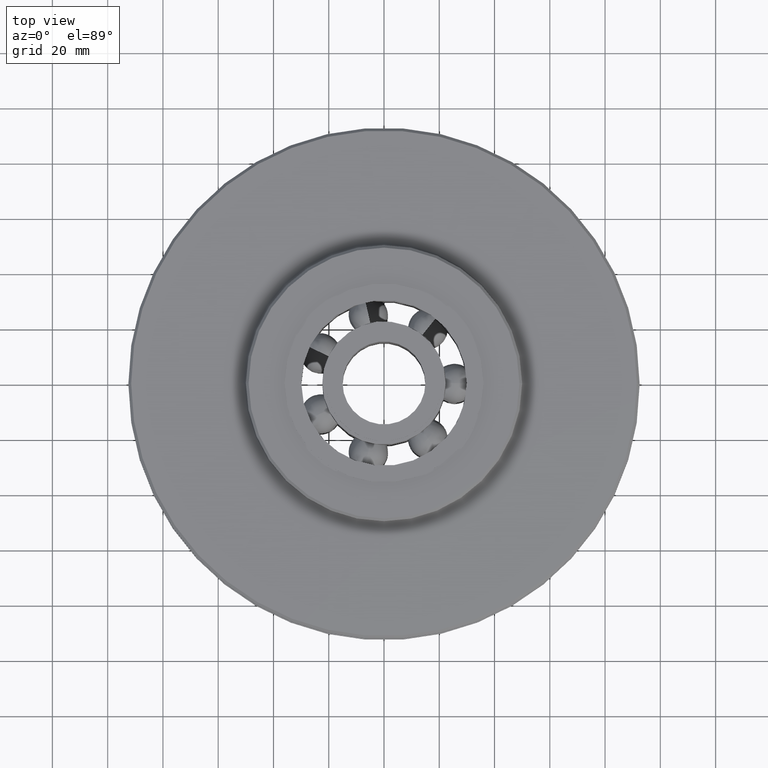
[diagram: clean part render]
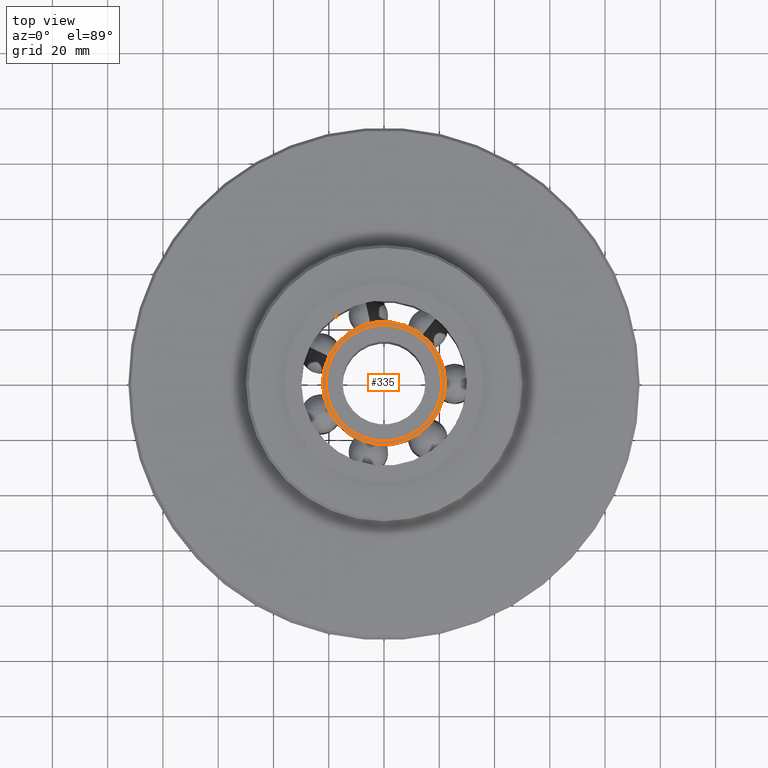
[diagram: same view with one face highlighted and labeled with its STEP entity id]
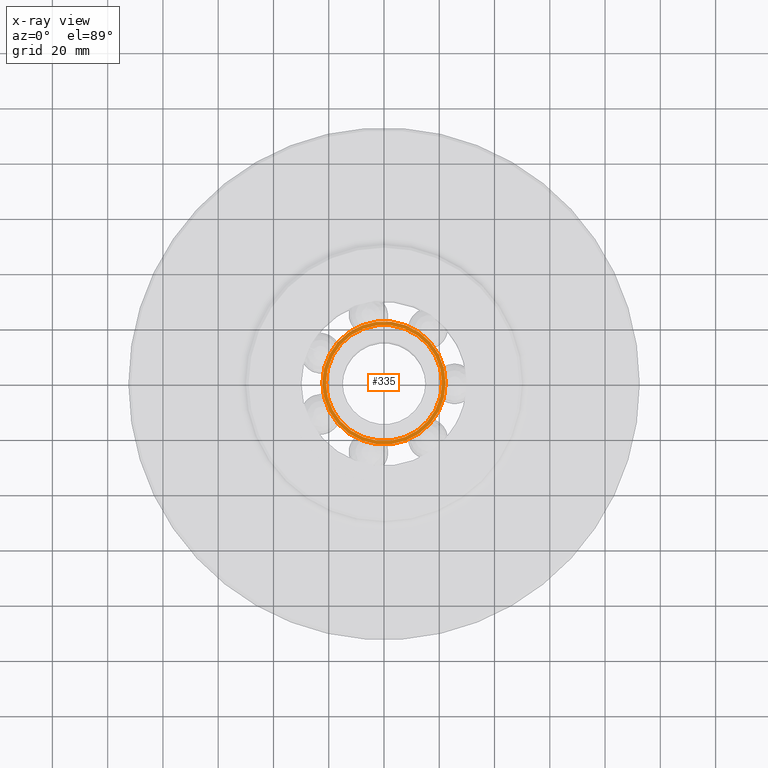
[diagram: x-ray of the same camera — body ghosted, the highlighted face saturated]
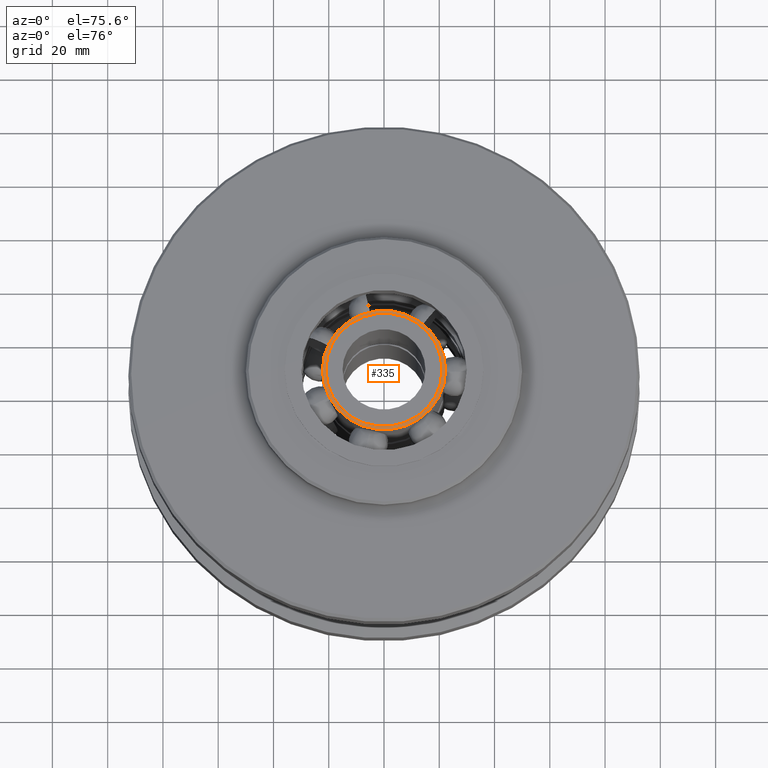
[diagram: same view with one face highlighted and labeled with its STEP entity id]
A machine part, top view. The second image highlights one B-rep face of the part: STEP entity #335.
The next image is the same camera in x-ray: the body ghosted, the highlighted face saturated — about 0% of this face is hidden behind the body in this view.
A second angle (auxiliary view) of the same face is appended — the face is thin or edge-on in the first view.
In plain terms, the highlighted planar face has unit normal (0, 0, 1).
Its self-contained STEP definition (entity closure, byte-faithful):
#335=ADVANCED_FACE('',(#719,#720),#721,.T.);
#719=FACE_BOUND('',#1137,.T.);
#720=FACE_OUTER_BOUND('',#1138,.T.);
#721=PLANE('',#1139);
#1137=EDGE_LOOP('',(#2203,#2204));
#1138=EDGE_LOOP('',(#2205,#2206));
#1139=AXIS2_PLACEMENT_3D('',#2207,#2208,#2209);
#2203=ORIENTED_EDGE('',*,*,#2936,.T.);
#2204=ORIENTED_EDGE('',*,*,#2921,.T.);
#2205=ORIENTED_EDGE('',*,*,#2802,.T.);
#2206=ORIENTED_EDGE('',*,*,#3005,.T.);
#2207=CARTESIAN_POINT('',(0.0,0.0,20.25));
#2208=DIRECTION('',(0.0,0.0,1.0));
#2209=DIRECTION('',(1.0,0.0,0.0));
#2802=EDGE_CURVE('',#3488,#3486,#3489,.T.);
#2921=EDGE_CURVE('',#3690,#3687,#3691,.T.);
#2936=EDGE_CURVE('',#3687,#3690,#3711,.T.);
#3005=EDGE_CURVE('',#3486,#3488,#3789,.T.);
#3486=VERTEX_POINT('',#6227);
#3488=VERTEX_POINT('',#6230);
#3489=CIRCLE('',#6231,22.3);
#3687=VERTEX_POINT('',#7304);
#3690=VERTEX_POINT('',#7308);
#3691=CIRCLE('',#7309,21.0);
#3711=CIRCLE('',#7332,21.0);
#3789=CIRCLE('',#7950,22.3);
#6227=CARTESIAN_POINT('',(-22.3,2.7309623620986E-015,20.25));
#6230=CARTESIAN_POINT('',(22.3,0.0,20.25));
#6231=AXIS2_PLACEMENT_3D('',#8844,#8845,#8846);
#7304=CARTESIAN_POINT('',(21.0,0.0,20.25));
#7308=CARTESIAN_POINT('',(-21.0,2.57175827820944E-015,20.25));
#7309=AXIS2_PLACEMENT_3D('',#8999,#9000,#9001);
#7332=AXIS2_PLACEMENT_3D('',#9026,#9027,#9028);
#7950=AXIS2_PLACEMENT_3D('',#9077,#9078,#9079);
#8844=CARTESIAN_POINT('',(0.0,0.0,20.25));
#8845=DIRECTION('',(0.0,0.0,1.0));
#8846=DIRECTION('',(1.0,0.0,0.0));
#8999=CARTESIAN_POINT('',(0.0,0.0,20.25));
#9000=DIRECTION('',(0.0,0.0,-1.0));
#9001=DIRECTION('',(1.0,0.0,0.0));
#9026=CARTESIAN_POINT('',(0.0,0.0,20.25));
#9027=DIRECTION('',(0.0,0.0,-1.0));
#9028=DIRECTION('',(1.0,0.0,0.0));
#9077=CARTESIAN_POINT('',(0.0,0.0,20.25));
#9078=DIRECTION('',(0.0,0.0,1.0));
#9079=DIRECTION('',(1.0,0.0,0.0));